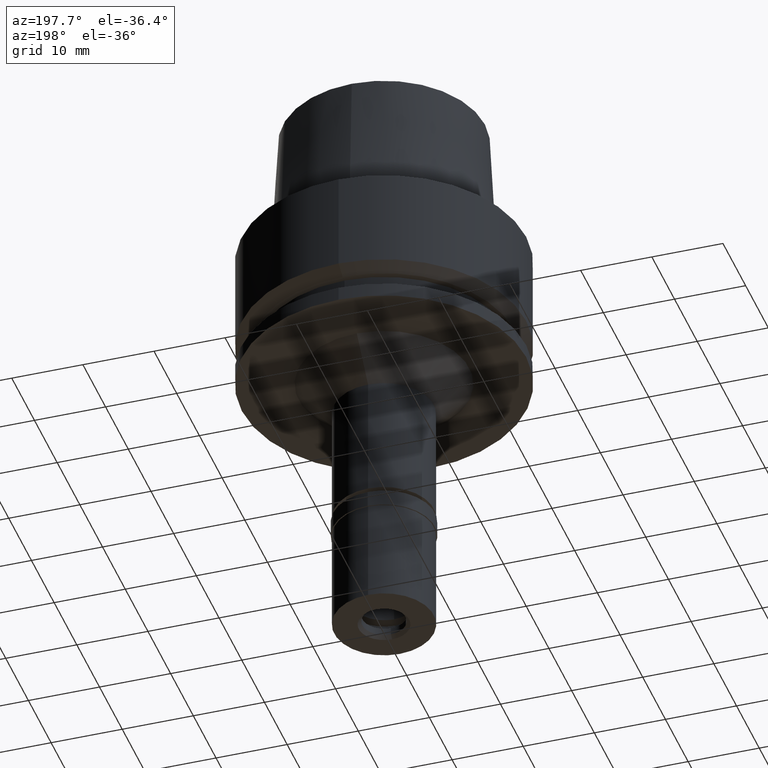
[diagram: clean part render]
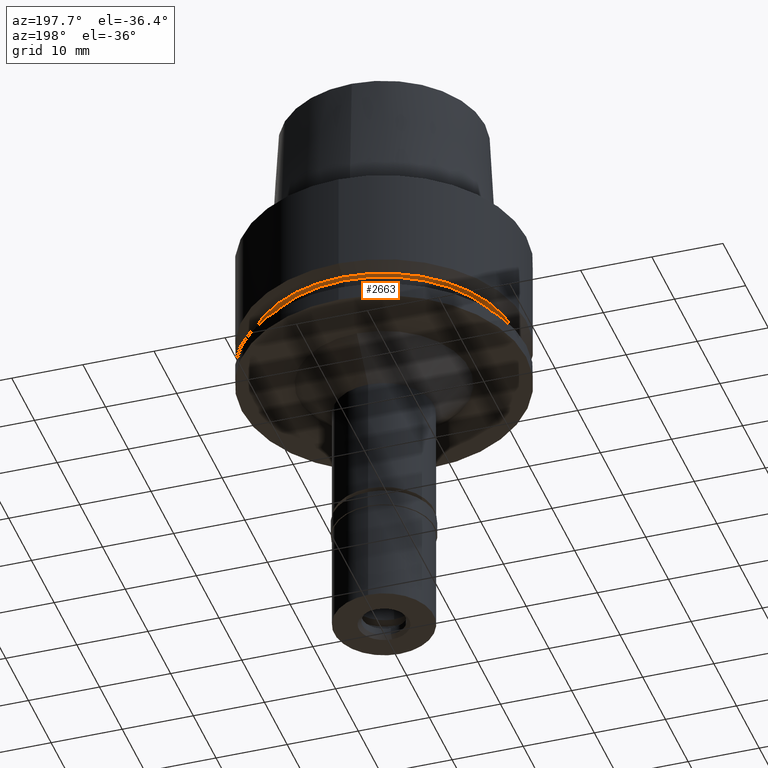
[diagram: same view with one face highlighted and labeled with its STEP entity id]
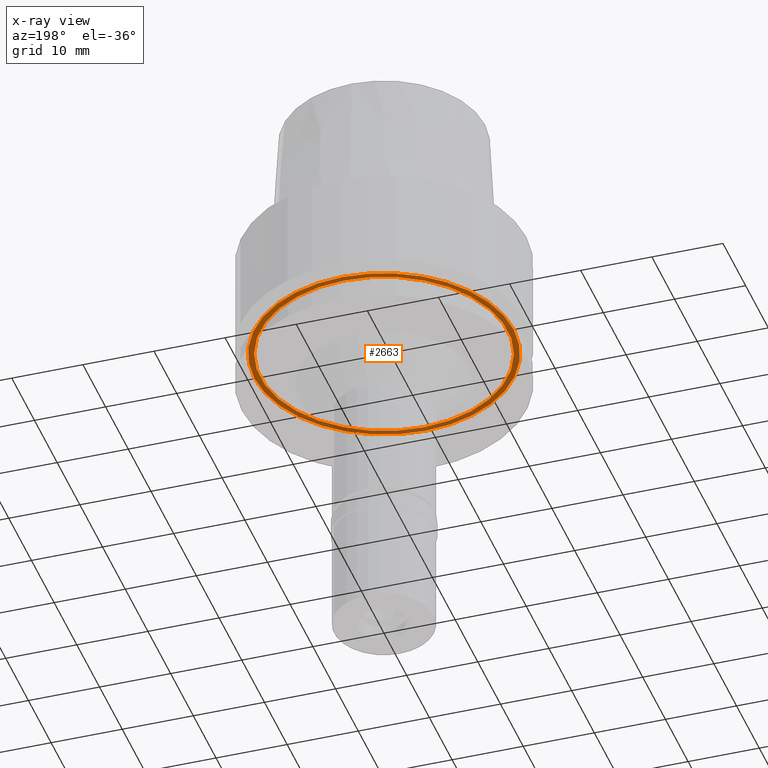
[diagram: x-ray of the same camera — body ghosted, the highlighted face saturated]
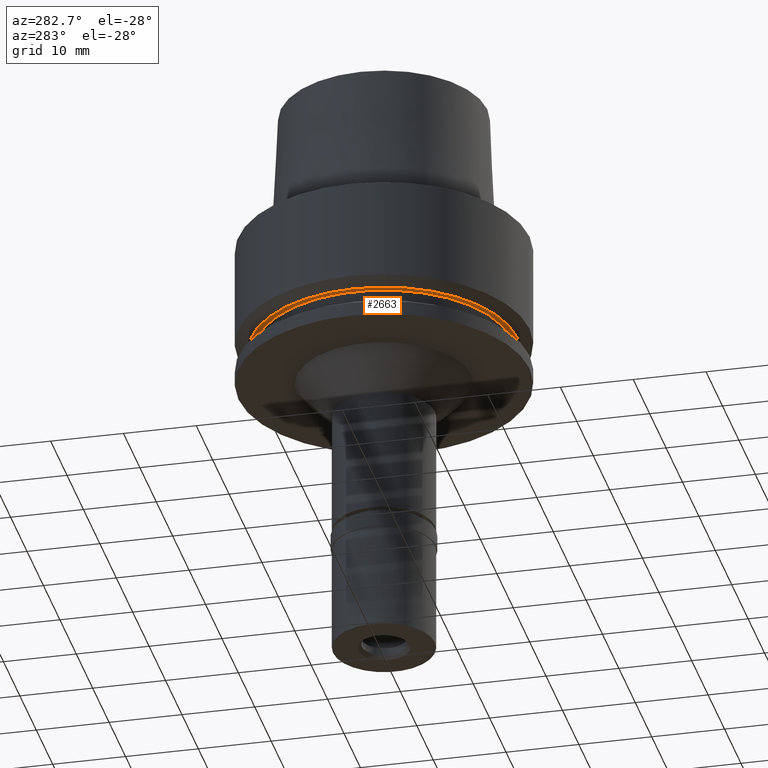
[diagram: same view with one face highlighted and labeled with its STEP entity id]
A machine part, auxiliary view. The second image highlights one B-rep face of the part: STEP entity #2663.
The next image is the same camera in x-ray: the body ghosted, the highlighted face saturated — about 14% of this face is hidden behind the body in this view.
A second angle (auxiliary view) of the same face is appended — the face is thin or edge-on in the first view.
In plain terms, the highlighted planar face has unit normal (0, 0, 1).
Its self-contained STEP definition (entity closure, byte-faithful):
#63 = VERTEX_POINT ( 'NONE', #122 ) ;
#122 = CARTESIAN_POINT ( 'NONE',  ( 0.0000000000000000000, 18.23205080331999994, -15.00000000000000000 ) ) ;
#169 = CARTESIAN_POINT ( 'NONE',  ( 0.0000000000000000000, 0.0000000000000000000, -15.00000000000000000 ) ) ;
#182 = CARTESIAN_POINT ( 'NONE',  ( 0.0000000000000000000, 0.0000000000000000000, -15.00000000000000000 ) ) ;
#368 = DIRECTION ( 'NONE',  ( 0.0000000000000000000, 0.0000000000000000000, -1.000000000000000000 ) ) ;
#397 = DIRECTION ( 'NONE',  ( 0.0000000000000000000, 0.0000000000000000000, 1.000000000000000000 ) ) ;
#491 = AXIS2_PLACEMENT_3D ( 'NONE', #182, #1834, #537 ) ;
#537 = DIRECTION ( 'NONE',  ( 0.0000000000000000000, 1.000000000000000000, 0.0000000000000000000 ) ) ;
#565 = DIRECTION ( 'NONE',  ( 0.0000000000000000000, 1.000000000000000000, 0.0000000000000000000 ) ) ;
#731 = CARTESIAN_POINT ( 'NONE',  ( 0.0000000000000000000, 17.39999999999999858, -15.00000000000000000 ) ) ;
#738 = FACE_OUTER_BOUND ( 'NONE', #2294, .T. ) ;
#807 = DIRECTION ( 'NONE',  ( 0.0000000000000000000, -1.000000000000000000, 0.0000000000000000000 ) ) ;
#883 = AXIS2_PLACEMENT_3D ( 'NONE', #169, #1395, #565 ) ;
#1146 = CARTESIAN_POINT ( 'NONE',  ( 0.0000000000000000000, 0.0000000000000000000, -15.00000000000000000 ) ) ;
#1301 = CIRCLE ( 'NONE', #1307, 18.23205080331999994 ) ;
#1304 = CARTESIAN_POINT ( 'NONE',  ( 0.0000000000000000000, -18.23205080331999994, -15.00000000000000000 ) ) ;
#1307 = AXIS2_PLACEMENT_3D ( 'NONE', #2488, #397, #807 ) ;
#1348 = FACE_BOUND ( 'NONE', #2352, .T. ) ;
#1381 = ORIENTED_EDGE ( 'NONE', *, *, #2551, .F. ) ;
#1395 = DIRECTION ( 'NONE',  ( 0.0000000000000000000, 0.0000000000000000000, 1.000000000000000000 ) ) ;
#1397 = CARTESIAN_POINT ( 'NONE',  ( 0.0000000000000000000, -17.39999999999999858, -15.00000000000000000 ) ) ;
#1424 = ORIENTED_EDGE ( 'NONE', *, *, #1730, .F. ) ;
#1437 = AXIS2_PLACEMENT_3D ( 'NONE', #2016, #368, #2212 ) ;
#1441 = EDGE_CURVE ( 'NONE', #1585, #63, #1301, .T. ) ;
#1585 = VERTEX_POINT ( 'NONE', #1304 ) ;
#1590 = PLANE ( 'NONE',  #2165 ) ;
#1714 = CIRCLE ( 'NONE', #883, 18.23205080331999994 ) ;
#1729 = VERTEX_POINT ( 'NONE', #731 ) ;
#1730 = EDGE_CURVE ( 'NONE', #1906, #1729, #1786, .T. ) ;
#1735 = ORIENTED_EDGE ( 'NONE', *, *, #1441, .F. ) ;
#1786 = CIRCLE ( 'NONE', #1437, 17.39999999999999858 ) ;
#1834 = DIRECTION ( 'NONE',  ( 0.0000000000000000000, 0.0000000000000000000, -1.000000000000000000 ) ) ;
#1906 = VERTEX_POINT ( 'NONE', #1397 ) ;
#1972 = DIRECTION ( 'NONE',  ( 1.000000000000000000, 0.0000000000000000000, 0.0000000000000000000 ) ) ;
#2016 = CARTESIAN_POINT ( 'NONE',  ( 0.0000000000000000000, 0.0000000000000000000, -15.00000000000000000 ) ) ;
#2067 = EDGE_CURVE ( 'NONE', #1729, #1906, #2463, .T. ) ;
#2165 = AXIS2_PLACEMENT_3D ( 'NONE', #1146, #2403, #1972 ) ;
#2212 = DIRECTION ( 'NONE',  ( 0.0000000000000000000, -1.000000000000000000, 0.0000000000000000000 ) ) ;
#2294 = EDGE_LOOP ( 'NONE', ( #1381, #1735 ) ) ;
#2309 = ORIENTED_EDGE ( 'NONE', *, *, #2067, .F. ) ;
#2352 = EDGE_LOOP ( 'NONE', ( #2309, #1424 ) ) ;
#2403 = DIRECTION ( 'NONE',  ( 0.0000000000000000000, 0.0000000000000000000, 1.000000000000000000 ) ) ;
#2463 = CIRCLE ( 'NONE', #491, 17.39999999999999858 ) ;
#2488 = CARTESIAN_POINT ( 'NONE',  ( 0.0000000000000000000, 0.0000000000000000000, -15.00000000000000000 ) ) ;
#2551 = EDGE_CURVE ( 'NONE', #63, #1585, #1714, .T. ) ;
#2663 = ADVANCED_FACE ( 'NONE', ( #738, #1348 ), #1590, .F. ) ;